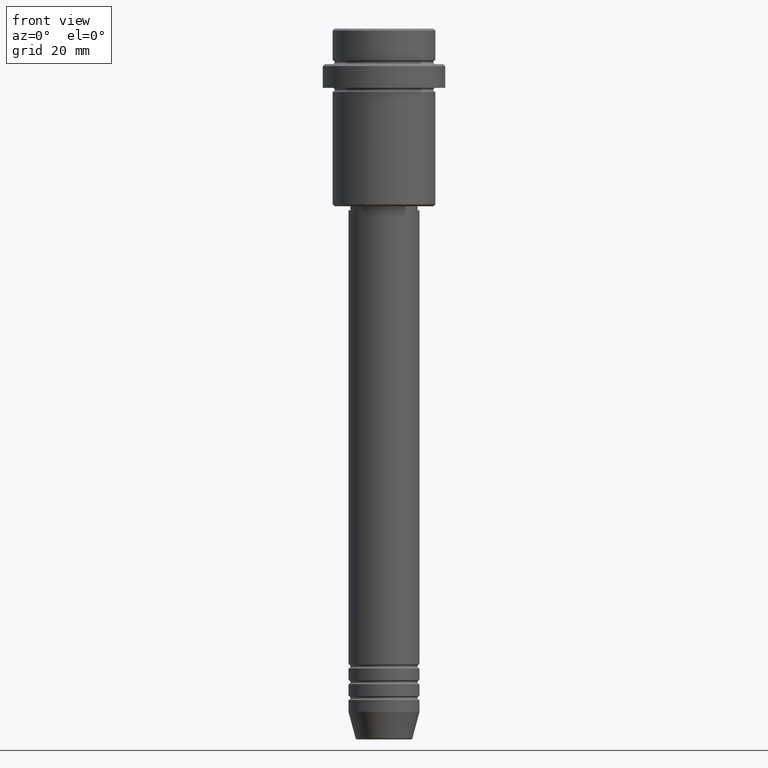
[diagram: clean part render]
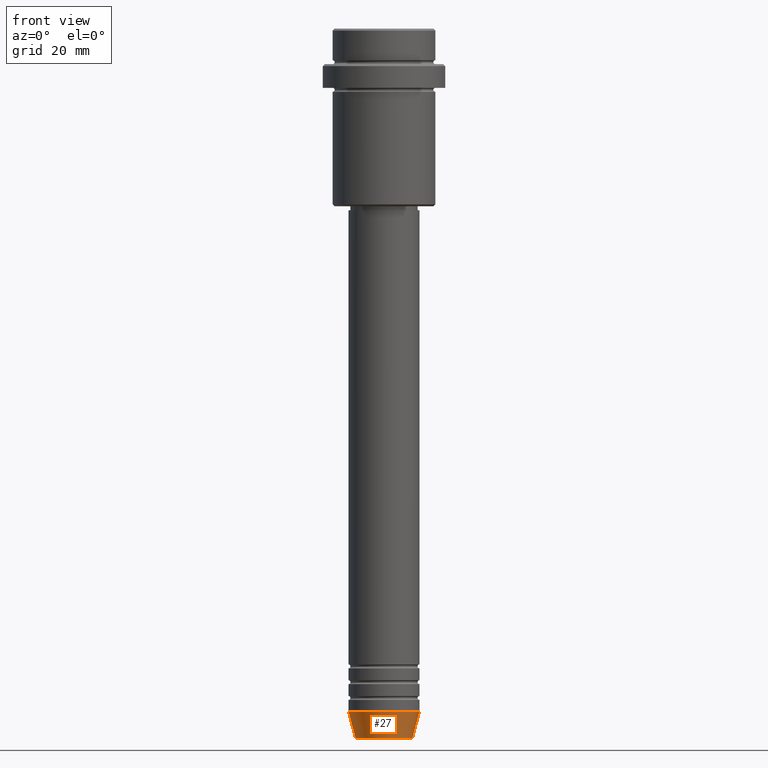
[diagram: same view with one face highlighted and labeled with its STEP entity id]
A machine part, front view. The second image highlights one B-rep face of the part: STEP entity #27.
In plain terms, the highlighted conical surface has half-angle 15 deg.
Its self-contained STEP definition (entity closure, byte-faithful):
#25 = ORIENTED_EDGE ( 'NONE', *, *, #1212, .F. ) ;
#27 = ADVANCED_FACE ( 'NONE', ( #1174 ), #987, .T. ) ;
#97 = EDGE_CURVE ( 'NONE', #288, #568, #622, .T. ) ;
#236 = CARTESIAN_POINT ( 'NONE',  ( -9.000000000000000000, 1.102182119232617714E-15, -173.0000000000000284 ) ) ;
#263 = CARTESIAN_POINT ( 'NONE',  ( -7.223655072137197486, 9.934123627281769054E-16, -179.6294095225512706 ) ) ;
#288 = VERTEX_POINT ( 'NONE', #461 ) ;
#312 = DIRECTION ( 'NONE',  ( -0.000000000000000000, -0.000000000000000000, 1.000000000000000000 ) ) ;
#416 = AXIS2_PLACEMENT_3D ( 'NONE', #1294, #312, #737 ) ;
#461 = CARTESIAN_POINT ( 'NONE',  ( -9.000000000000000000, 1.102182119232617714E-15, -173.0000000000000284 ) ) ;
#483 = ORIENTED_EDGE ( 'NONE', *, *, #799, .T. ) ;
#568 = VERTEX_POINT ( 'NONE', #860 ) ;
#622 = CIRCLE ( 'NONE', #416, 9.000000000000000000 ) ;
#633 = DIRECTION ( 'NONE',  ( 1.000000000000000000, 0.000000000000000000, 0.000000000000000000 ) ) ;
#737 = DIRECTION ( 'NONE',  ( 1.000000000000000000, 0.000000000000000000, 0.000000000000000000 ) ) ;
#754 = DIRECTION ( 'NONE',  ( -0.000000000000000000, -0.000000000000000000, 1.000000000000000000 ) ) ;
#772 = DIRECTION ( 'NONE',  ( -0.2588190451025213501, 3.169619151431772337E-17, 0.9659258262890680902 ) ) ;
#781 = LINE ( 'NONE', #236, #828 ) ;
#783 = EDGE_CURVE ( 'NONE', #1344, #1141, #1016, .T. ) ;
#786 = CARTESIAN_POINT ( 'NONE',  ( 0.000000000000000000, 0.000000000000000000, -179.6294095225512706 ) ) ;
#791 = DIRECTION ( 'NONE',  ( 0.2588190451025213501, 0.000000000000000000, 0.9659258262890680902 ) ) ;
#799 = EDGE_CURVE ( 'NONE', #1141, #568, #893, .T. ) ;
#828 = VECTOR ( 'NONE', #772, 1000.000000000000000 ) ;
#837 = EDGE_LOOP ( 'NONE', ( #25, #845, #483, #1326 ) ) ;
#845 = ORIENTED_EDGE ( 'NONE', *, *, #783, .T. ) ;
#860 = CARTESIAN_POINT ( 'NONE',  ( 9.000000000000000000, 0.000000000000000000, -173.0000000000000284 ) ) ;
#866 = CARTESIAN_POINT ( 'NONE',  ( 0.000000000000000000, 0.000000000000000000, -173.0000000000000284 ) ) ;
#893 = LINE ( 'NONE', #905, #1180 ) ;
#905 = CARTESIAN_POINT ( 'NONE',  ( 9.000000000000000000, 0.000000000000000000, -173.0000000000000284 ) ) ;
#951 = DIRECTION ( 'NONE',  ( -0.000000000000000000, -0.000000000000000000, 1.000000000000000000 ) ) ;
#952 = CARTESIAN_POINT ( 'NONE',  ( 7.223655072137196598, 0.000000000000000000, -179.6294095225512706 ) ) ;
#987 = CONICAL_SURFACE ( 'NONE', #1379, 9.000000000000000000, 0.2617993877991500740 ) ;
#1016 = CIRCLE ( 'NONE', #1225, 7.223655072137196598 ) ;
#1141 = VERTEX_POINT ( 'NONE', #952 ) ;
#1174 = FACE_OUTER_BOUND ( 'NONE', #837, .T. ) ;
#1180 = VECTOR ( 'NONE', #791, 1000.000000000000000 ) ;
#1212 = EDGE_CURVE ( 'NONE', #1344, #288, #781, .T. ) ;
#1215 = DIRECTION ( 'NONE',  ( 1.000000000000000000, 0.000000000000000000, 0.000000000000000000 ) ) ;
#1225 = AXIS2_PLACEMENT_3D ( 'NONE', #786, #754, #1215 ) ;
#1294 = CARTESIAN_POINT ( 'NONE',  ( 0.000000000000000000, 0.000000000000000000, -173.0000000000000284 ) ) ;
#1326 = ORIENTED_EDGE ( 'NONE', *, *, #97, .F. ) ;
#1344 = VERTEX_POINT ( 'NONE', #263 ) ;
#1379 = AXIS2_PLACEMENT_3D ( 'NONE', #866, #951, #633 ) ;